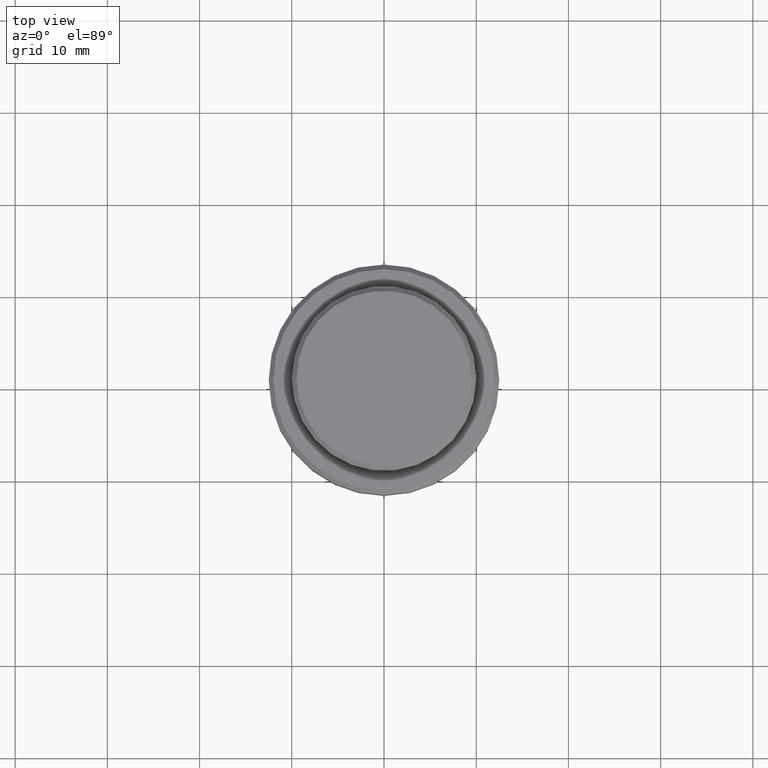
[diagram: clean part render]
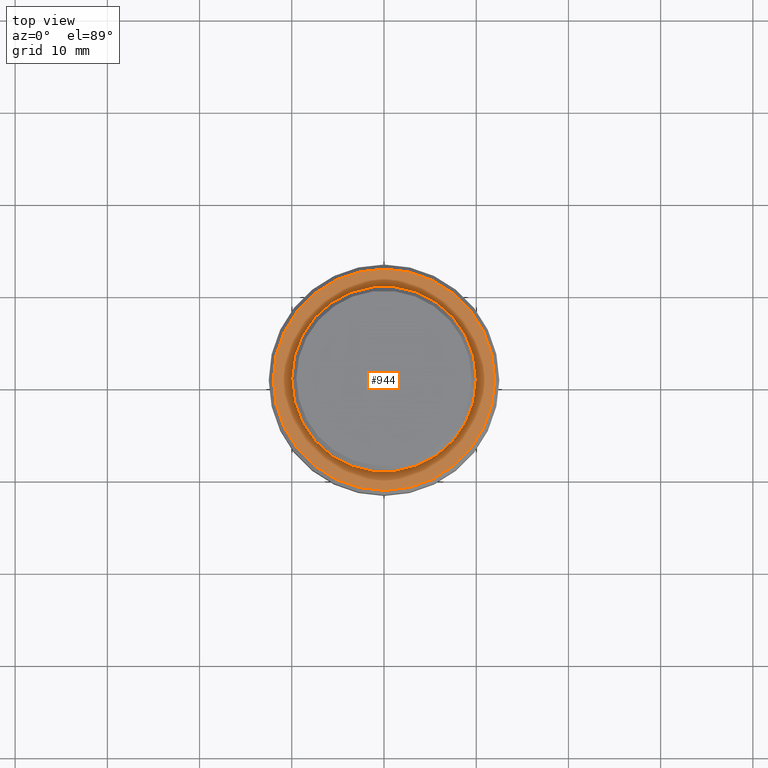
[diagram: same view with one face highlighted and labeled with its STEP entity id]
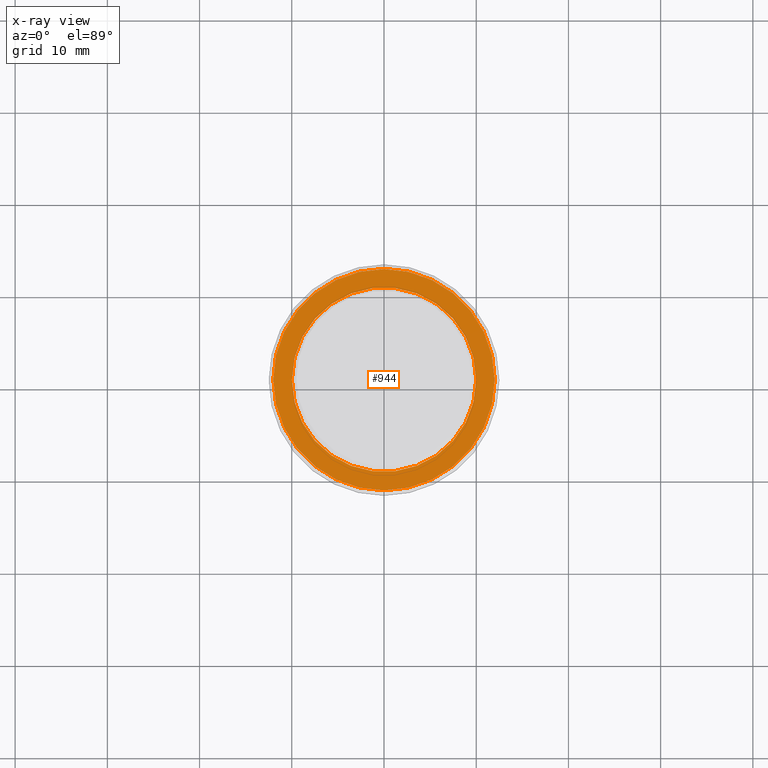
[diagram: x-ray of the same camera — body ghosted, the highlighted face saturated]
A machine part, top view. The second image highlights one B-rep face of the part: STEP entity #944.
The next image is the same camera in x-ray: the body ghosted, the highlighted face saturated — about 0% of this face is hidden behind the body in this view.
In plain terms, the highlighted planar face has unit normal (0, -0, 1).
Its self-contained STEP definition (entity closure, byte-faithful):
#48 = FACE_BOUND ( 'NONE', #403, .T. ) ;
#116 = AXIS2_PLACEMENT_3D ( 'NONE', #1216, #922, #1118 ) ;
#119 = EDGE_CURVE ( 'NONE', #1072, #886, #1332, .T. ) ;
#150 = DIRECTION ( 'NONE',  ( 0.000000000000000000, 0.000000000000000000, -1.000000000000000000 ) ) ;
#188 = DIRECTION ( 'NONE',  ( 1.000000000000000000, 0.000000000000000000, 0.000000000000000000 ) ) ;
#252 = DIRECTION ( 'NONE',  ( 1.000000000000000000, 0.000000000000000000, 0.000000000000000000 ) ) ;
#298 = DIRECTION ( 'NONE',  ( -0.000000000000000000, -0.000000000000000000, 1.000000000000000000 ) ) ;
#319 = CIRCLE ( 'NONE', #745, 12.00000000000000355 ) ;
#324 = CARTESIAN_POINT ( 'NONE',  ( 9.999999999999994671, 0.000000000000000000, -9.000000000000001776 ) ) ;
#344 = EDGE_CURVE ( 'NONE', #686, #371, #1199, .T. ) ;
#352 = AXIS2_PLACEMENT_3D ( 'NONE', #1380, #298, #188 ) ;
#364 = ORIENTED_EDGE ( 'NONE', *, *, #119, .T. ) ;
#367 = EDGE_LOOP ( 'NONE', ( #364, #598 ) ) ;
#371 = VERTEX_POINT ( 'NONE', #799 ) ;
#403 = EDGE_LOOP ( 'NONE', ( #739, #420 ) ) ;
#417 = CARTESIAN_POINT ( 'NONE',  ( 0.000000000000000000, 0.000000000000000000, -9.000000000000001776 ) ) ;
#420 = ORIENTED_EDGE ( 'NONE', *, *, #440, .T. ) ;
#440 = EDGE_CURVE ( 'NONE', #371, #686, #882, .T. ) ;
#593 = CARTESIAN_POINT ( 'NONE',  ( 12.00000000000000355, 1.500192328955507734E-15, -9.000000000000001776 ) ) ;
#598 = ORIENTED_EDGE ( 'NONE', *, *, #1256, .T. ) ;
#686 = VERTEX_POINT ( 'NONE', #324 ) ;
#710 = FACE_OUTER_BOUND ( 'NONE', #367, .T. ) ;
#739 = ORIENTED_EDGE ( 'NONE', *, *, #344, .T. ) ;
#745 = AXIS2_PLACEMENT_3D ( 'NONE', #417, #1417, #872 ) ;
#794 = PLANE ( 'NONE',  #1015 ) ;
#799 = CARTESIAN_POINT ( 'NONE',  ( -9.999999999999994671, 1.224646799147352665E-15, -9.000000000000001776 ) ) ;
#800 = CARTESIAN_POINT ( 'NONE',  ( 0.000000000000000000, 9.499999999999994671, -9.000000000000001776 ) ) ;
#872 = DIRECTION ( 'NONE',  ( 1.000000000000000000, 0.000000000000000000, 0.000000000000000000 ) ) ;
#882 = CIRCLE ( 'NONE', #929, 9.999999999999994671 ) ;
#886 = VERTEX_POINT ( 'NONE', #593 ) ;
#890 = DIRECTION ( 'NONE',  ( 1.000000000000000000, 0.000000000000000000, 0.000000000000000000 ) ) ;
#891 = DIRECTION ( 'NONE',  ( 0.000000000000000000, -0.000000000000000000, 1.000000000000000000 ) ) ;
#922 = DIRECTION ( 'NONE',  ( 0.000000000000000000, 0.000000000000000000, -1.000000000000000000 ) ) ;
#929 = AXIS2_PLACEMENT_3D ( 'NONE', #1135, #150, #890 ) ;
#944 = ADVANCED_FACE ( 'NONE', ( #710, #48 ), #794, .T. ) ;
#1015 = AXIS2_PLACEMENT_3D ( 'NONE', #800, #891, #252 ) ;
#1072 = VERTEX_POINT ( 'NONE', #1253 ) ;
#1118 = DIRECTION ( 'NONE',  ( 1.000000000000000000, 0.000000000000000000, 0.000000000000000000 ) ) ;
#1135 = CARTESIAN_POINT ( 'NONE',  ( 0.000000000000000000, 0.000000000000000000, -9.000000000000001776 ) ) ;
#1199 = CIRCLE ( 'NONE', #116, 9.999999999999994671 ) ;
#1216 = CARTESIAN_POINT ( 'NONE',  ( 0.000000000000000000, 0.000000000000000000, -9.000000000000001776 ) ) ;
#1253 = CARTESIAN_POINT ( 'NONE',  ( -12.00000000000000355, 0.000000000000000000, -9.000000000000001776 ) ) ;
#1256 = EDGE_CURVE ( 'NONE', #886, #1072, #319, .T. ) ;
#1332 = CIRCLE ( 'NONE', #352, 12.00000000000000355 ) ;
#1380 = CARTESIAN_POINT ( 'NONE',  ( 0.000000000000000000, 0.000000000000000000, -9.000000000000001776 ) ) ;
#1417 = DIRECTION ( 'NONE',  ( -0.000000000000000000, -0.000000000000000000, 1.000000000000000000 ) ) ;